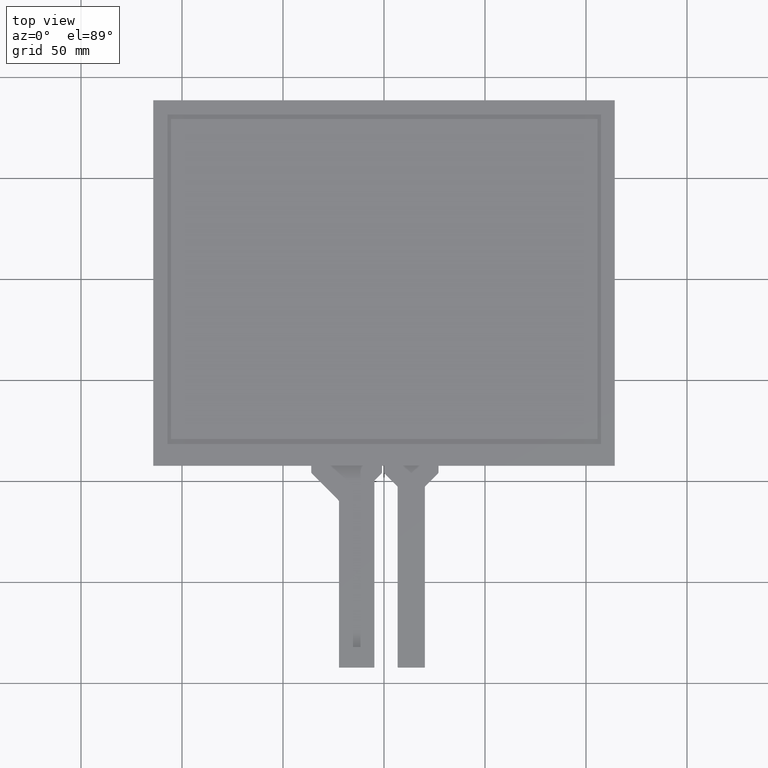
[diagram: clean part render]
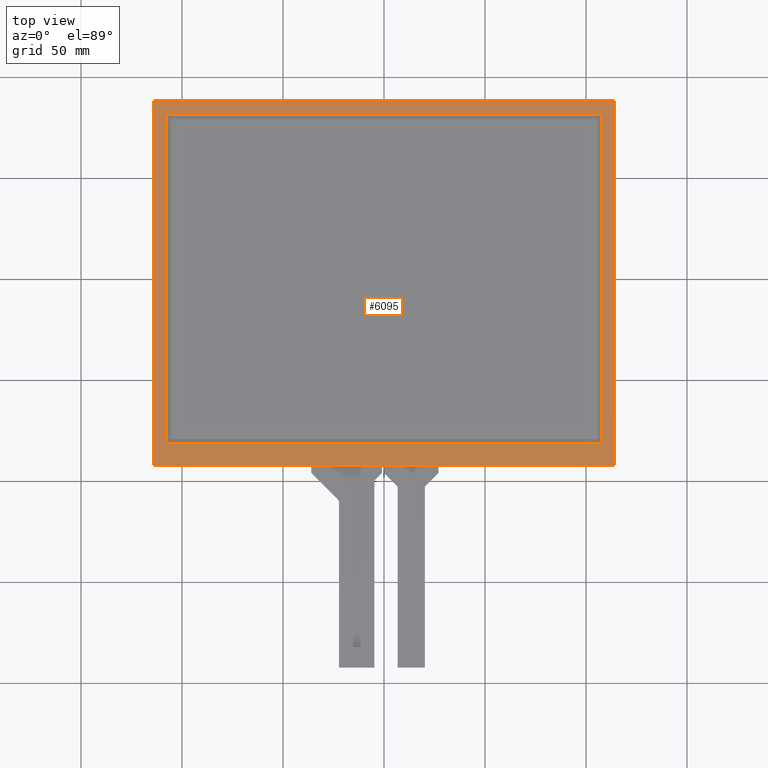
[diagram: same view with one face highlighted and labeled with its STEP entity id]
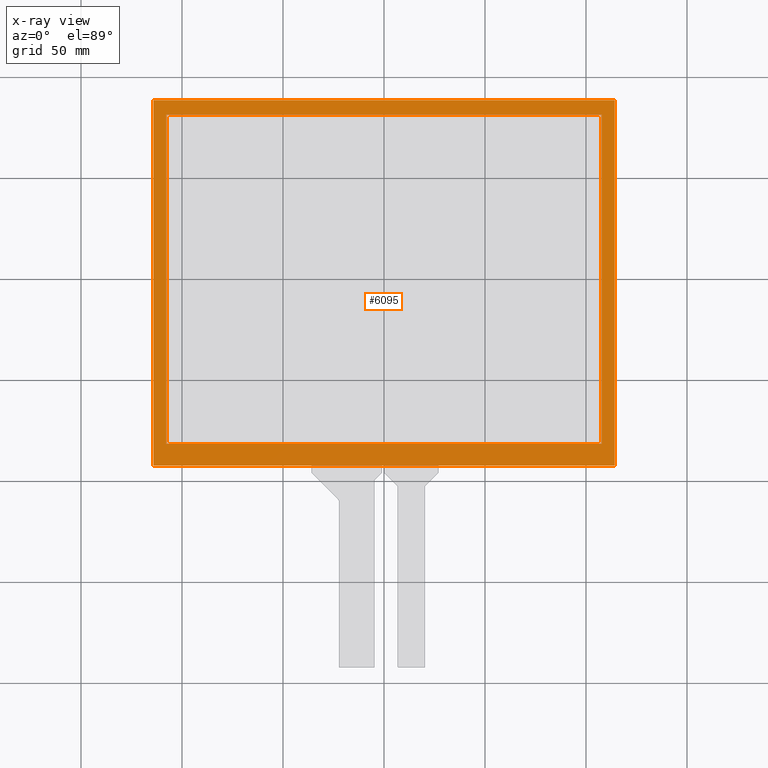
[diagram: x-ray of the same camera — body ghosted, the highlighted face saturated]
A machine part, top view. The second image highlights one B-rep face of the part: STEP entity #6095.
The next image is the same camera in x-ray: the body ghosted, the highlighted face saturated — about 0% of this face is hidden behind the body in this view.
In plain terms, the highlighted planar face has unit normal (0, 0, 1).
Its self-contained STEP definition (entity closure, byte-faithful):
#47=FACE_BOUND('',#915,.T.);
#325=PLANE('',#6433);
#619=FACE_OUTER_BOUND('',#914,.T.);
#914=EDGE_LOOP('',(#5756,#5757,#5758,#5759));
#915=EDGE_LOOP('',(#5760,#5761,#5762,#5763));
#1740=LINE('',#9604,#2580);
#1744=LINE('',#9612,#2584);
#1747=LINE('',#9618,#2587);
#1750=LINE('',#9623,#2590);
#1752=LINE('',#9629,#2592);
#1753=LINE('',#9631,#2593);
#1754=LINE('',#9633,#2594);
#1755=LINE('',#9634,#2595);
#2580=VECTOR('',#7872,10.);
#2584=VECTOR('',#7878,10.);
#2587=VECTOR('',#7883,10.);
#2590=VECTOR('',#7888,10.);
#2592=VECTOR('',#7894,10.);
#2593=VECTOR('',#7895,10.);
#2594=VECTOR('',#7896,10.);
#2595=VECTOR('',#7897,10.);
#3188=VERTEX_POINT('',#9602);
#3189=VERTEX_POINT('',#9603);
#3192=VERTEX_POINT('',#9611);
#3194=VERTEX_POINT('',#9617);
#3196=VERTEX_POINT('',#9627);
#3197=VERTEX_POINT('',#9628);
#3198=VERTEX_POINT('',#9630);
#3199=VERTEX_POINT('',#9632);
#4044=EDGE_CURVE('',#3188,#3189,#1740,.T.);
#4048=EDGE_CURVE('',#3192,#3188,#1744,.T.);
#4051=EDGE_CURVE('',#3194,#3192,#1747,.T.);
#4054=EDGE_CURVE('',#3189,#3194,#1750,.T.);
#4056=EDGE_CURVE('',#3196,#3197,#1752,.T.);
#4057=EDGE_CURVE('',#3197,#3198,#1753,.T.);
#4058=EDGE_CURVE('',#3198,#3199,#1754,.T.);
#4059=EDGE_CURVE('',#3199,#3196,#1755,.T.);
#5756=ORIENTED_EDGE('',*,*,#4056,.T.);
#5757=ORIENTED_EDGE('',*,*,#4057,.T.);
#5758=ORIENTED_EDGE('',*,*,#4058,.T.);
#5759=ORIENTED_EDGE('',*,*,#4059,.T.);
#5760=ORIENTED_EDGE('',*,*,#4044,.T.);
#5761=ORIENTED_EDGE('',*,*,#4054,.T.);
#5762=ORIENTED_EDGE('',*,*,#4051,.T.);
#5763=ORIENTED_EDGE('',*,*,#4048,.T.);
#6095=ADVANCED_FACE('',(#619,#47),#325,.T.);
#6433=AXIS2_PLACEMENT_3D('',#9626,#7892,#7893);
#7872=DIRECTION('',(-2.17690789142188E-16,1.,0.));
#7878=DIRECTION('',(-1.,-8.24295517123086E-17,0.));
#7883=DIRECTION('',(1.08845394571094E-16,-1.,0.));
#7888=DIRECTION('',(1.,0.,0.));
#7892=DIRECTION('center_axis',(0.,0.,1.));
#7893=DIRECTION('ref_axis',(1.,0.,0.));
#7894=DIRECTION('',(-1.,0.,0.));
#7895=DIRECTION('',(1.96391027020481E-16,-1.,0.));
#7896=DIRECTION('',(1.,1.55479810888425E-16,0.));
#7897=DIRECTION('',(-9.81955135102405E-17,1.,0.));
#9602=CARTESIAN_POINT('',(-107.75,-81.6,0.));
#9603=CARTESIAN_POINT('',(-107.75,81.6000000000001,0.));
#9604=CARTESIAN_POINT('',(-107.75,-41.725,0.));
#9611=CARTESIAN_POINT('',(107.75,-81.6,0.));
#9612=CARTESIAN_POINT('',(53.8750000000001,-81.6,0.));
#9617=CARTESIAN_POINT('',(107.75,81.6000000000001,0.));
#9618=CARTESIAN_POINT('',(107.75,39.8750000000001,0.));
#9623=CARTESIAN_POINT('',(-53.875,81.6000000000001,0.));
#9626=CARTESIAN_POINT('Origin',(5.32907051820075E-14,-1.84999999999995,
0.));
#9627=CARTESIAN_POINT('',(114.25,88.6000000000001,0.));
#9628=CARTESIAN_POINT('',(-114.25,88.6000000000001,0.));
#9629=CARTESIAN_POINT('',(114.25,88.6000000000001,0.));
#9630=CARTESIAN_POINT('',(-114.25,-92.3,0.));
#9631=CARTESIAN_POINT('',(-114.25,88.6000000000001,0.));
#9632=CARTESIAN_POINT('',(114.25,-92.2999999999999,0.));
#9633=CARTESIAN_POINT('',(-114.25,-92.3,0.));
#9634=CARTESIAN_POINT('',(114.25,-92.2999999999999,0.));